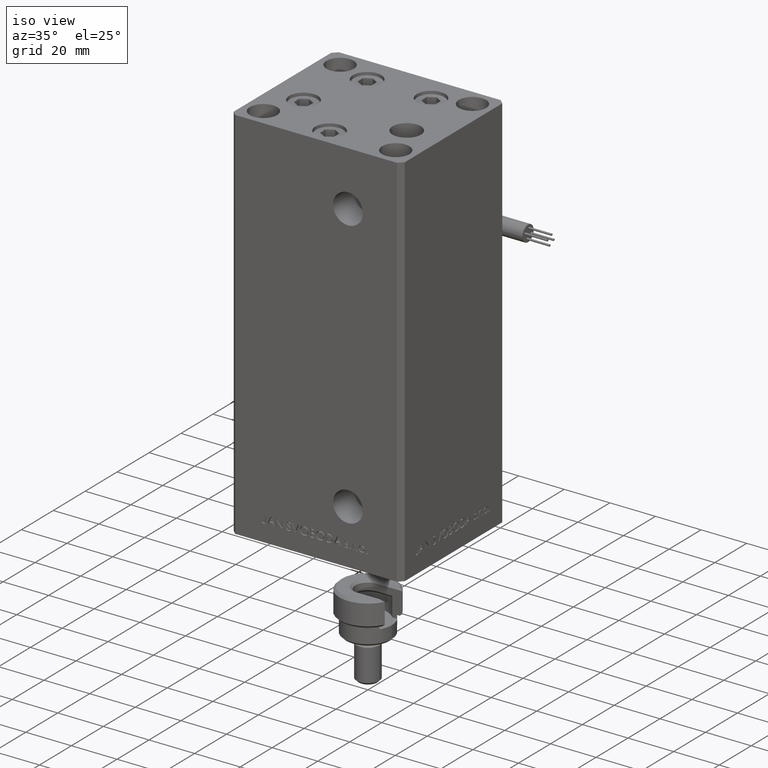
[diagram: clean part render]
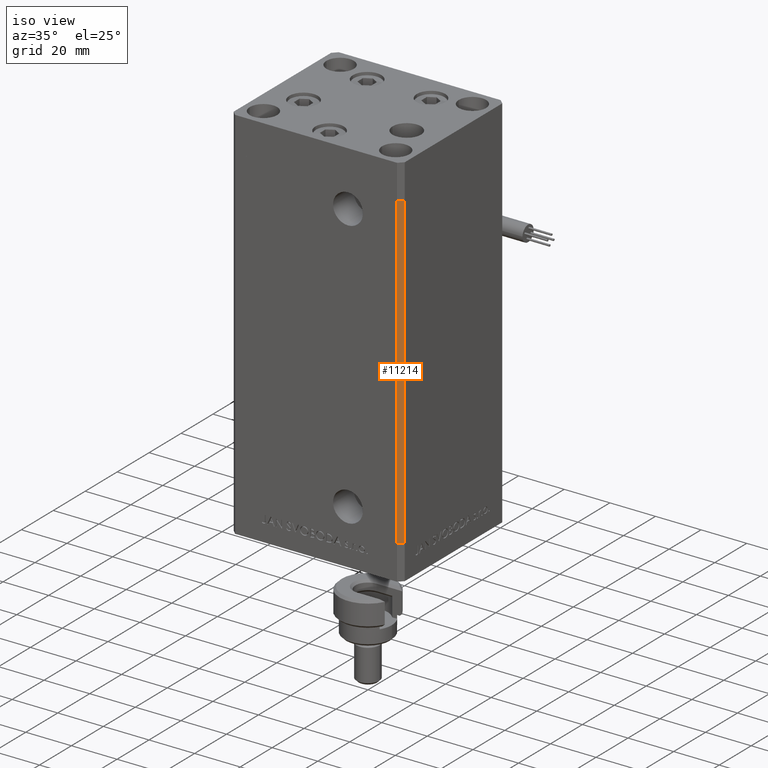
[diagram: same view with one face highlighted and labeled with its STEP entity id]
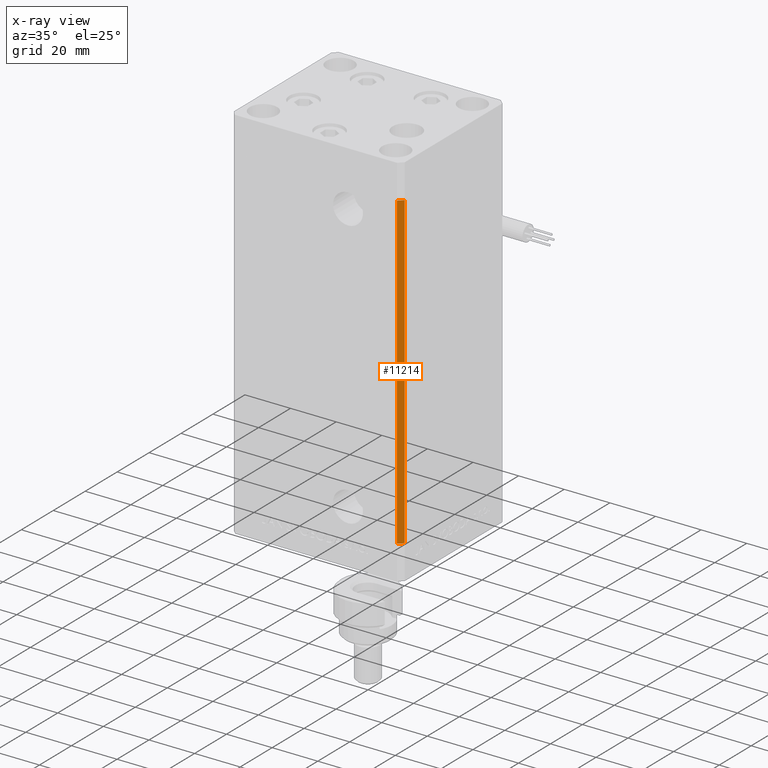
[diagram: x-ray of the same camera — body ghosted, the highlighted face saturated]
A machine part, iso view. The second image highlights one B-rep face of the part: STEP entity #11214.
The next image is the same camera in x-ray: the body ghosted, the highlighted face saturated — about 0% of this face is hidden behind the body in this view.
In plain terms, the highlighted planar face has unit normal (0.7071, -0.7071, 0).
Its self-contained STEP definition (entity closure, byte-faithful):
#718 = CARTESIAN_POINT ( 'NONE',  ( 35.49999999999999289, -32.50000000000000000, 136.0000000000000000 ) ) ;
#776 = EDGE_CURVE ( 'NONE', #52834, #35797, #38701, .T. ) ;
#3314 = DIRECTION ( 'NONE',  ( 0.7071067811865474617, 0.7071067811865474617, 0.000000000000000000 ) ) ;
#3538 = VERTEX_POINT ( 'NONE', #42342 ) ;
#6240 = AXIS2_PLACEMENT_3D ( 'NONE', #44954, #53150, #3314 ) ;
#6732 = CARTESIAN_POINT ( 'NONE',  ( 37.49999999999999289, -30.50000000000000000, 0.000000000000000000 ) ) ;
#6849 = DIRECTION ( 'NONE',  ( -0.7071067811865474617, -0.7071067811865474617, 0.000000000000000000 ) ) ;
#9058 = DIRECTION ( 'NONE',  ( -0.000000000000000000, -0.000000000000000000, -1.000000000000000000 ) ) ;
#11214 = ADVANCED_FACE ( 'NONE', ( #35442 ), #15587, .T. ) ;
#11480 = CARTESIAN_POINT ( 'NONE',  ( 35.49999999999999289, -32.50000000000000000, 0.000000000000000000 ) ) ;
#12982 = VECTOR ( 'NONE', #9058, 1000.000000000000000 ) ;
#15039 = LINE ( 'NONE', #48225, #19674 ) ;
#15587 = PLANE ( 'NONE',  #6240 ) ;
#18031 = CARTESIAN_POINT ( 'NONE',  ( 37.49999999999999289, -30.50000000000000000, 0.000000000000000000 ) ) ;
#19674 = VECTOR ( 'NONE', #6849, 1000.000000000000114 ) ;
#21283 = VERTEX_POINT ( 'NONE', #718 ) ;
#22648 = EDGE_LOOP ( 'NONE', ( #27626, #27656, #29654, #36560 ) ) ;
#22697 = EDGE_CURVE ( 'NONE', #3538, #52834, #35925, .T. ) ;
#24030 = VECTOR ( 'NONE', #31850, 1000.000000000000000 ) ;
#27508 = CARTESIAN_POINT ( 'NONE',  ( 37.49999999999999289, -30.50000000000000000, 136.0000000000000000 ) ) ;
#27626 = ORIENTED_EDGE ( 'NONE', *, *, #776, .F. ) ;
#27656 = ORIENTED_EDGE ( 'NONE', *, *, #22697, .F. ) ;
#28964 = EDGE_CURVE ( 'NONE', #21283, #35797, #38983, .T. ) ;
#29654 = ORIENTED_EDGE ( 'NONE', *, *, #38001, .T. ) ;
#30248 = VECTOR ( 'NONE', #30543, 1000.000000000000114 ) ;
#30543 = DIRECTION ( 'NONE',  ( -0.7071067811865474617, -0.7071067811865474617, 0.000000000000000000 ) ) ;
#31850 = DIRECTION ( 'NONE',  ( -0.000000000000000000, -0.000000000000000000, -1.000000000000000000 ) ) ;
#35442 = FACE_OUTER_BOUND ( 'NONE', #22648, .T. ) ;
#35797 = VERTEX_POINT ( 'NONE', #11480 ) ;
#35925 = LINE ( 'NONE', #27508, #24030 ) ;
#36560 = ORIENTED_EDGE ( 'NONE', *, *, #28964, .T. ) ;
#38001 = EDGE_CURVE ( 'NONE', #3538, #21283, #15039, .T. ) ;
#38193 = CARTESIAN_POINT ( 'NONE',  ( 35.49999999999999289, -32.50000000000000000, 136.0000000000000000 ) ) ;
#38701 = LINE ( 'NONE', #18031, #30248 ) ;
#38983 = LINE ( 'NONE', #38193, #12982 ) ;
#42342 = CARTESIAN_POINT ( 'NONE',  ( 37.49999999999999289, -30.50000000000000000, 136.0000000000000000 ) ) ;
#44954 = CARTESIAN_POINT ( 'NONE',  ( 37.49999999999999289, -30.50000000000000000, 136.0000000000000000 ) ) ;
#48225 = CARTESIAN_POINT ( 'NONE',  ( 37.49999999999999289, -30.50000000000000000, 136.0000000000000000 ) ) ;
#52834 = VERTEX_POINT ( 'NONE', #6732 ) ;
#53150 = DIRECTION ( 'NONE',  ( 0.7071067811865475727, -0.7071067811865475727, 0.000000000000000000 ) ) ;